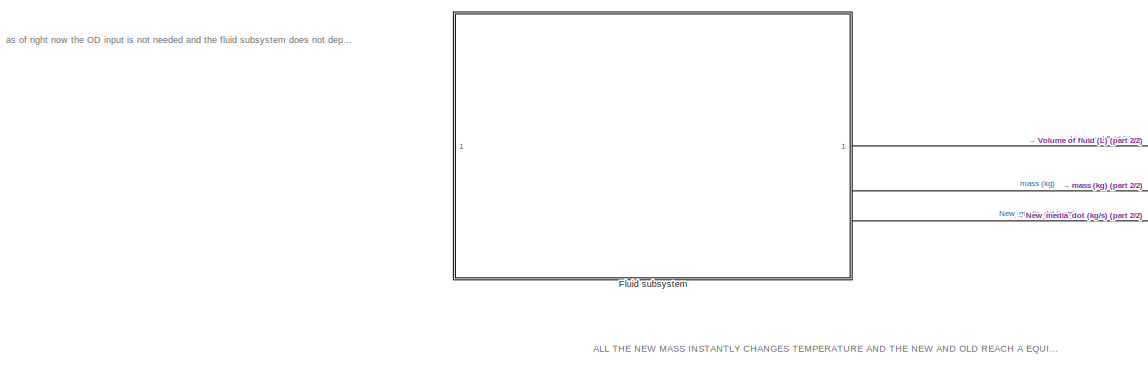
[diagram: root canvas - part 1/2, left side, full height]
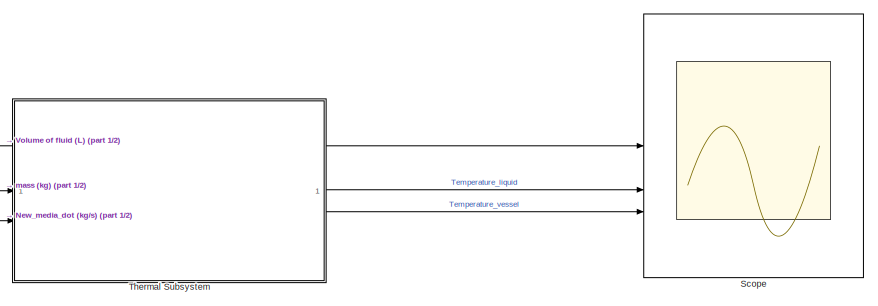
[diagram: root canvas - part 2/2, right side, full height]
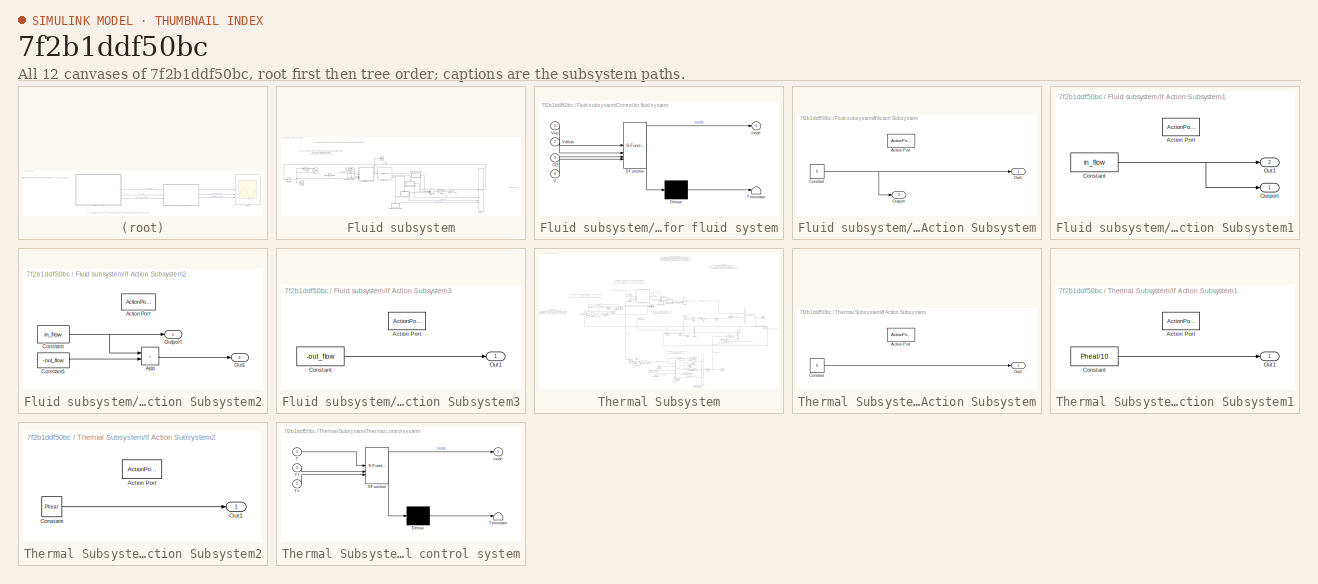
[diagram: thumbnail index - all 12 canvases of the model, root first then tree order]
MODEL slx_7f2b1ddf50bc
KIND model
CONFIG AbsTol = auto
CONFIG EnableMultiTasking = off
CONFIG FixedStep = 0.1
CONFIG MaxStep = auto
CONFIG MinStep = auto
CONFIG RelTol = 1e-3
CONFIG SampleTimeConstraint = Unconstrained
CONFIG SolverName = FixedStepAuto
CONFIG StartTime = 0.0
CONFIG StopTime = 1000
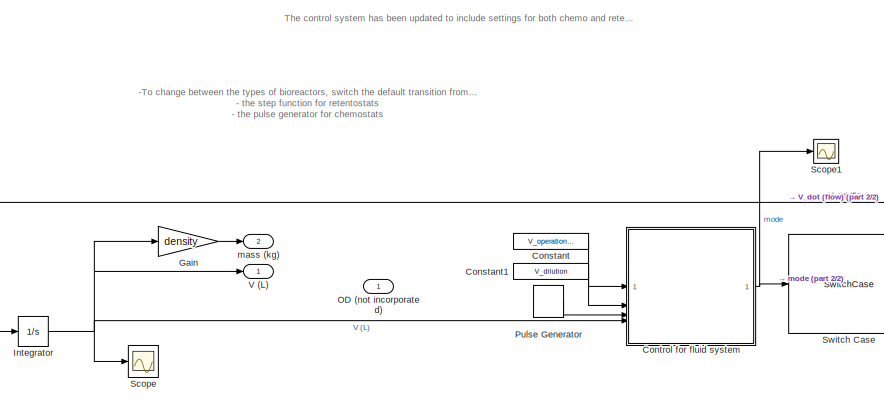
[diagram: Fluid subsystem - part 1/2, middle left region]
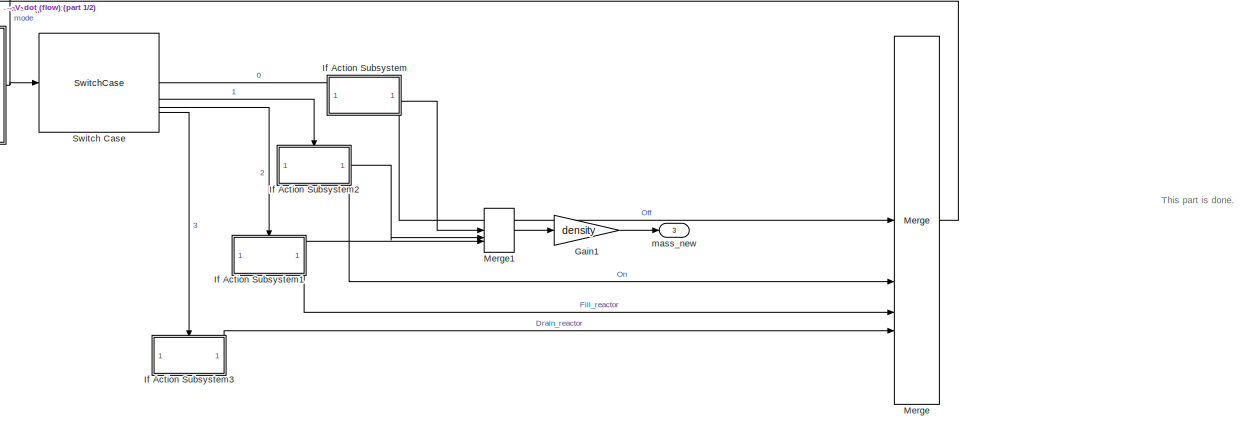
[diagram: Fluid subsystem - part 2/2, middle right region]
BLOCK [SubSystem] Fluid subsystem
BLOCK [Constant] Fluid subsystem/Constant
  Value = V_operational
BLOCK [Constant] Fluid subsystem/Constant1
  Value = V_dilution
BLOCK [SubSystem] Fluid subsystem/Control for fluid system
  ErrorFcn = Stateflow.Translate.translate
  PermitHierarchicalResolution = ExplicitOnly
  SFBlockType = Chart
  TreatAsAtomicUnit = on
BLOCK [Demux] Fluid subsystem/Control for fluid system/ Demux 
  Outputs = 1
BLOCK [S-Function] Fluid subsystem/Control for fluid system/ SFunction 
  EnableBusSupport = on
  FunctionName = sf_sfun
  PortCounts = [4 2]
  SFcnIsStateOwnerBlock = off
  SFunctionDeploymentMode = off
  Tag = Stateflow S-Function 3
BLOCK [Terminator] Fluid subsystem/Control for fluid system/ Terminator 
BLOCK [Inport] Fluid subsystem/Control for fluid system/OD
  Port = 3
BLOCK [Inport] Fluid subsystem/Control for fluid system/V
  Port = 4
BLOCK [Inport] Fluid subsystem/Control for fluid system/Vdilute
  Port = 2
BLOCK [Inport] Fluid subsystem/Control for fluid system/Vop
BLOCK [Outport] Fluid subsystem/Control for fluid system/mode
BLOCK [Gain] Fluid subsystem/Gain
  Gain = density
BLOCK [Gain] Fluid subsystem/Gain1
  Gain = density
BLOCK [SubSystem] Fluid subsystem/If Action Subsystem
  TreatAsAtomicUnit = on
BLOCK [ActionPort] Fluid subsystem/If Action Subsystem/Action Port
  ActionPortLabel = case [ 0 ]:
BLOCK [Constant] Fluid subsystem/If Action Subsystem/Constant
  Value = 0
BLOCK [Outport] Fluid subsystem/If Action Subsystem/Out1
BLOCK [Outport] Fluid subsystem/If Action Subsystem/Outport
  Port = 2
BLOCK [SubSystem] Fluid subsystem/If Action Subsystem1
  TreatAsAtomicUnit = on
BLOCK [ActionPort] Fluid subsystem/If Action Subsystem1/Action Port
  ActionPortLabel = case [ 2 ]:
BLOCK [Constant] Fluid subsystem/If Action Subsystem1/Constant
  Value = in_flow
BLOCK [Outport] Fluid subsystem/If Action Subsystem1/Out1
  Port = 2
BLOCK [Outport] Fluid subsystem/If Action Subsystem1/Outport
BLOCK [SubSystem] Fluid subsystem/If Action Subsystem2
  TreatAsAtomicUnit = on
BLOCK [ActionPort] Fluid subsystem/If Action Subsystem2/Action Port
  ActionPortLabel = case [ 1 ]:
BLOCK [Sum] Fluid subsystem/If Action Subsystem2/Add
  IconShape = rectangular
BLOCK [Constant] Fluid subsystem/If Action Subsystem2/Constant
  Value = in_flow
BLOCK [Constant] Fluid subsystem/If Action Subsystem2/Constant1
  Value = -out_flow
BLOCK [Outport] Fluid subsystem/If Action Subsystem2/Out1
  Port = 2
BLOCK [Outport] Fluid subsystem/If Action Subsystem2/Outport
BLOCK [SubSystem] Fluid subsystem/If Action Subsystem3
  TreatAsAtomicUnit = on
BLOCK [ActionPort] Fluid subsystem/If Action Subsystem3/Action Port
  ActionPortLabel = case [ 3 ]:
BLOCK [Constant] Fluid subsystem/If Action Subsystem3/Constant
  Value = -out_flow
BLOCK [Outport] Fluid subsystem/If Action Subsystem3/Out1
BLOCK [Integrator] Fluid subsystem/Integrator
  InitialCondition = 0.01
BLOCK [Merge] Fluid subsystem/Merge
  Inputs = 4
BLOCK [Merge] Fluid subsystem/Merge1
  Inputs = 3
BLOCK [Inport] Fluid subsystem/OD (not incorporated)
BLOCK [DiscretePulseGenerator] Fluid subsystem/Pulse Generator
  Period = 50
  PulseType = Time based
  PulseWidth = 5
BLOCK [Scope] Fluid subsystem/Scope
  Floating = off
  NumInputPorts = 1
  ScopeSpecificationString = Simulink.scopes.TimeScopeBlockCfg('CurrentConfiguration', extmgr.ConfigurationSet(extmgr.Configuration('Core','General UI',true),extmgr.Configuration('Core','Source UI',true),extmgr.Configuration('Sources','WiredSimulink',true,'DataLoggingVariableName','ScopeData1'),extmgr.Configuration('Visuals','Time Domain',true,'SerializedDisplays',{struct('MinYLimReal','0.00781','MaxYLimReal','0.02969','YLabe...<+1392ch>
BLOCK [Scope] Fluid subsystem/Scope1
  Floating = off
  NumInputPorts = 1
  ScopeSpecificationString = Simulink.scopes.TimeScopeBlockCfg('CurrentConfiguration', extmgr.ConfigurationSet(extmgr.Configuration('Core','General UI',true),extmgr.Configuration('Core','Source UI',true),extmgr.Configuration('Sources','WiredSimulink',true,'DataLoggingVariableName','ScopeData4'),extmgr.Configuration('Visuals','Time Domain',true,'SerializedDisplays',{struct('MinYLimReal','-0.375','MaxYLimReal','3.375','YLabelRe...<+1351ch>
BLOCK [SwitchCase] Fluid subsystem/Switch Case
  CaseConditions = {0,1,2,3}
  ShowDefaultCase = off
BLOCK [Outport] Fluid subsystem/V (L)
BLOCK [Outport] Fluid subsystem/mass (kg)
  Port = 2
BLOCK [Outport] Fluid subsystem/mass_new
  Port = 3
BLOCK [Scope] Scope
  Floating = off
  NumInputPorts = 3
  ScopeSpecificationString = Simulink.scopes.TimeScopeBlockCfg('CurrentConfiguration', extmgr.ConfigurationSet(extmgr.Configuration('Core','General UI',true),extmgr.Configuration('Core','Source UI',true),extmgr.Configuration('Sources','WiredSimulink',true),extmgr.Configuration('Visuals','Time Domain',true,'SerializedDisplays',{struct('MinYLimReal','0.00025','MaxYLimReal','0.05009','YLabelReal','','MinYLimMag','0.00025','MaxYL...<+2086ch>
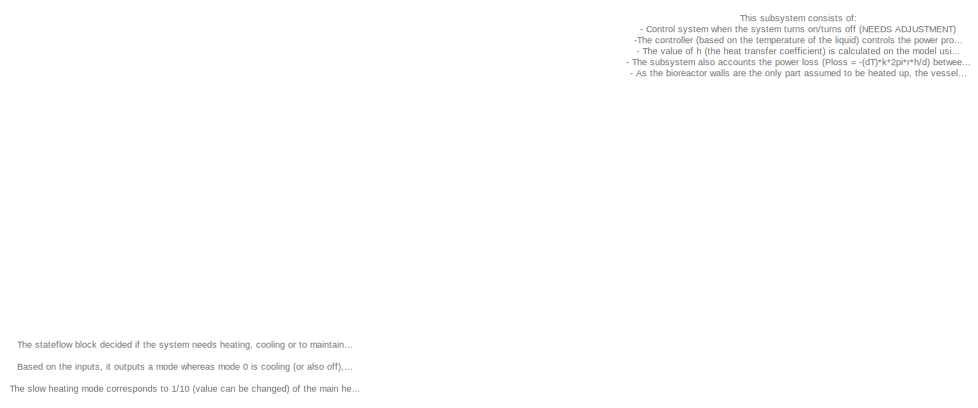
[diagram: Thermal Subsystem - part 1/6, top center region]
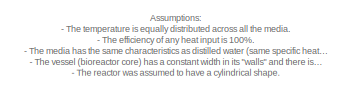
[diagram: Thermal Subsystem - part 2/6, top right region]
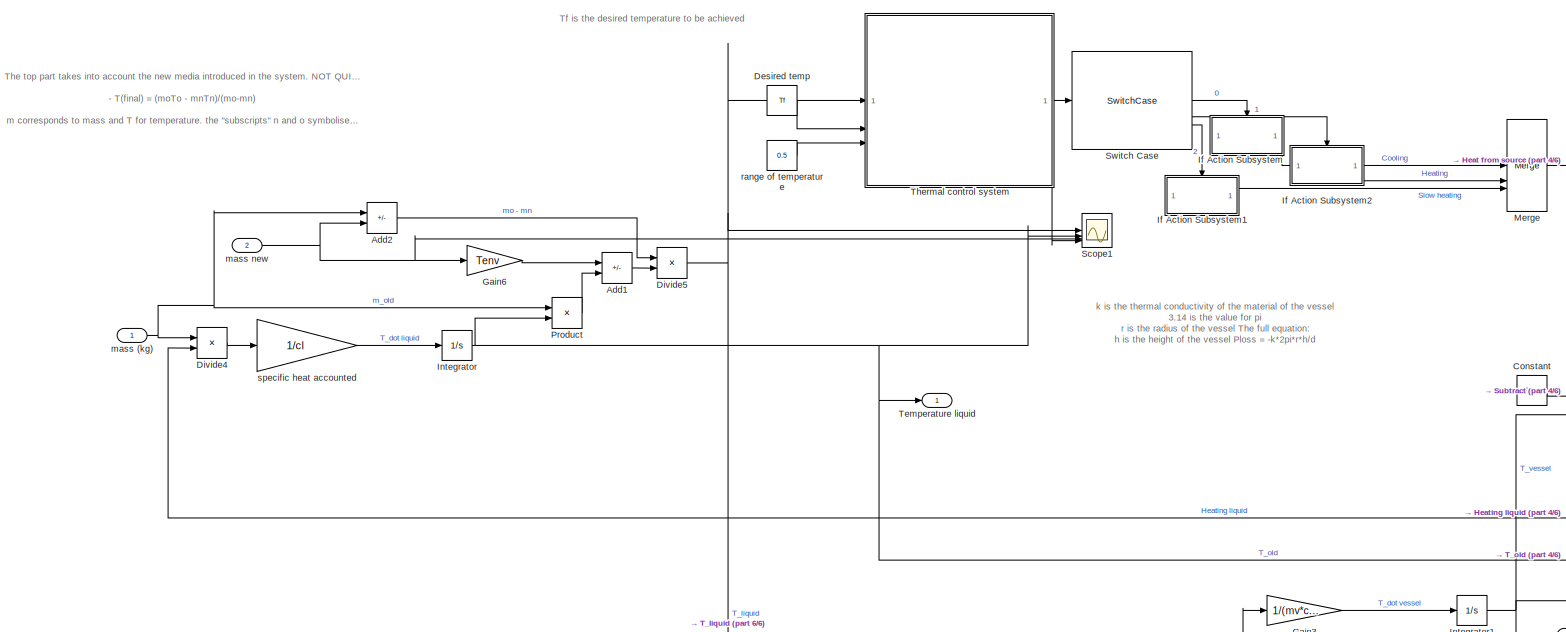
[diagram: Thermal Subsystem - part 3/6, central region]
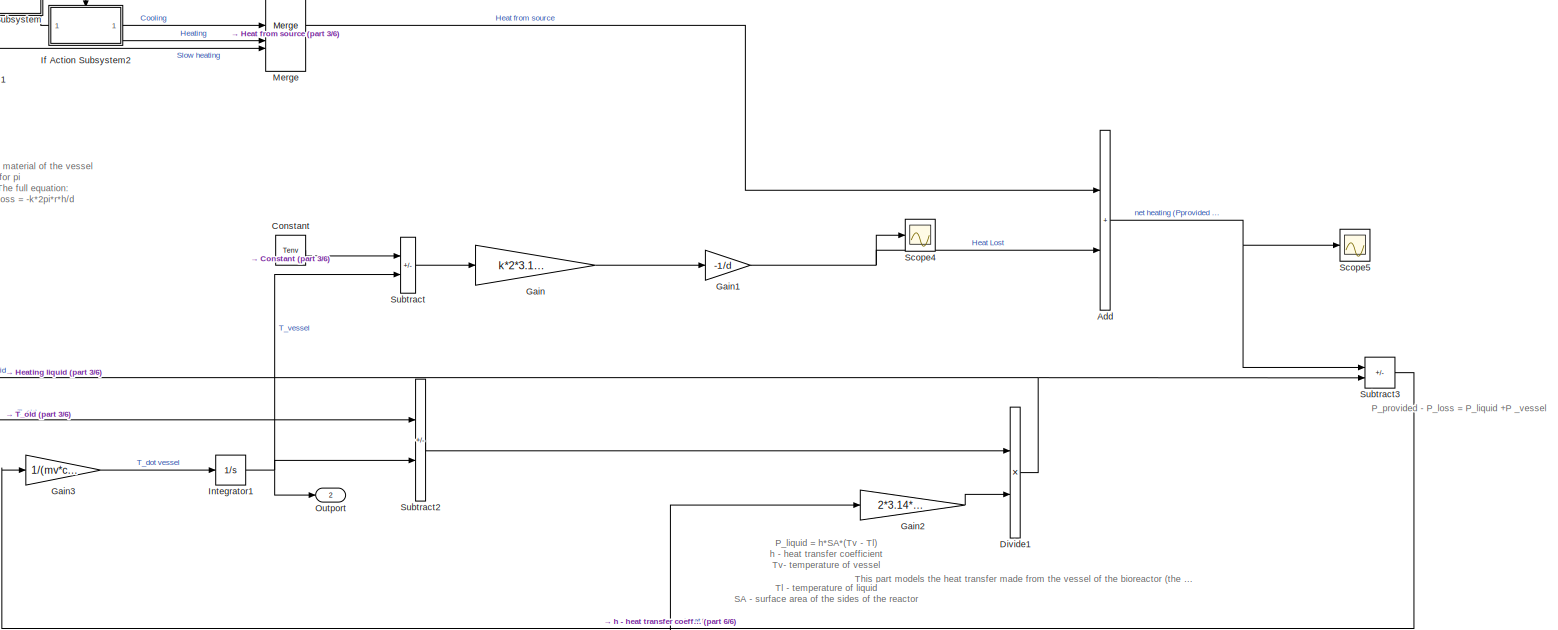
[diagram: Thermal Subsystem - part 4/6, middle right region]
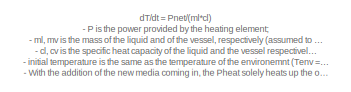
[diagram: Thermal Subsystem - part 5/6, middle left region]
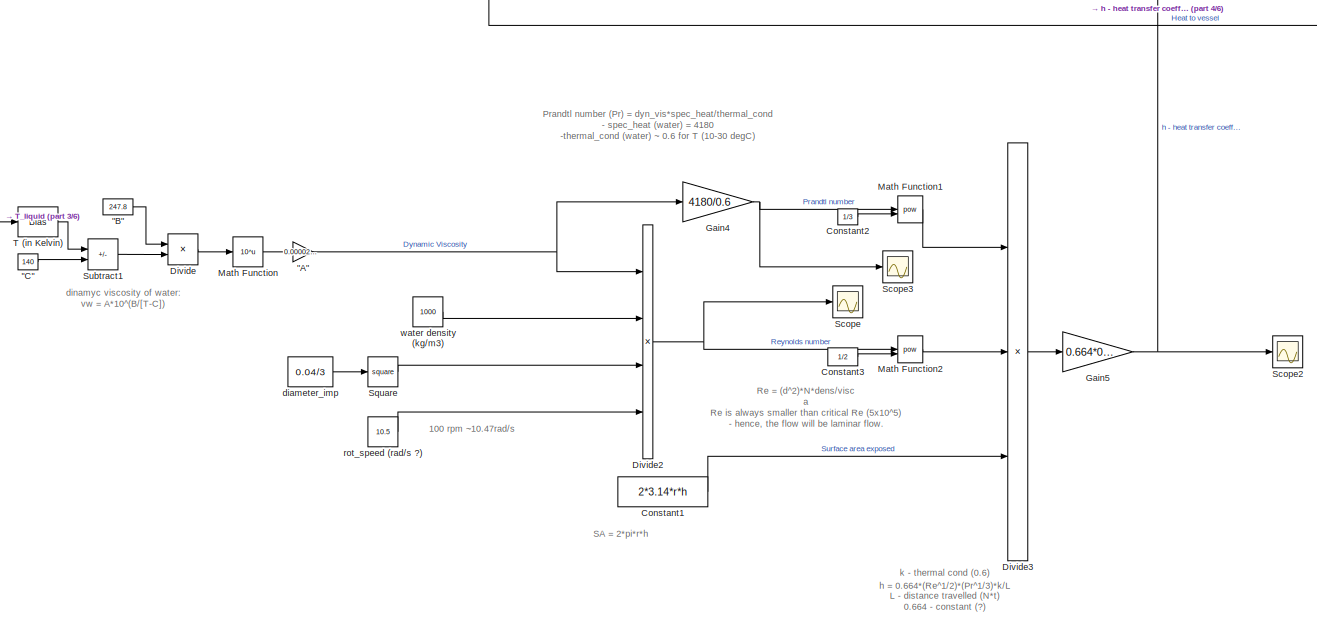
[diagram: Thermal Subsystem - part 6/6, bottom center region]
BLOCK [SubSystem] Thermal Subsystem
BLOCK [Gain] Thermal Subsystem/"A"
  Gain = 0.00002414
BLOCK [Constant] Thermal Subsystem/"B"
  Value = 247.8
BLOCK [Constant] Thermal Subsystem/"C"
  Value = 140
BLOCK [Sum] Thermal Subsystem/Add
  IconShape = rectangular
BLOCK [Sum] Thermal Subsystem/Add1
  IconShape = rectangular
  Inputs = -+
BLOCK [Sum] Thermal Subsystem/Add2
  IconShape = rectangular
  Inputs = +-
BLOCK [Constant] Thermal Subsystem/Constant
  Value = Tenv
BLOCK [Constant] Thermal Subsystem/Constant1
  Value = 2*3.14*r*h
BLOCK [Constant] Thermal Subsystem/Constant2
  Value = 1/3
BLOCK [Constant] Thermal Subsystem/Constant3
  Value = 1/2
BLOCK [Constant] Thermal Subsystem/Desired temp
  Value = Tf
BLOCK [Product] Thermal Subsystem/Divide
  Inputs = */
BLOCK [Product] Thermal Subsystem/Divide1
  Inputs = **
BLOCK [Product] Thermal Subsystem/Divide2
  Inputs = /***
BLOCK [Product] Thermal Subsystem/Divide3
  Inputs = **/
BLOCK [Product] Thermal Subsystem/Divide4
  Inputs = /*
BLOCK [Product] Thermal Subsystem/Divide5
  Inputs = /*
BLOCK [Gain] Thermal Subsystem/Gain
  Gain = k*2*3.14*r*h
BLOCK [Gain] Thermal Subsystem/Gain1
  Gain = -1/d
BLOCK [Gain] Thermal Subsystem/Gain2
  Gain = 2*3.14*r*h
BLOCK [Gain] Thermal Subsystem/Gain3
  Gain = 1/(mv*cv)
BLOCK [Gain] Thermal Subsystem/Gain4
  Gain = 4180/0.6
BLOCK [Gain] Thermal Subsystem/Gain5
  Gain = 0.664*0.6
BLOCK [Gain] Thermal Subsystem/Gain6
  Gain = Tenv
BLOCK [SubSystem] Thermal Subsystem/If Action Subsystem
  TreatAsAtomicUnit = on
BLOCK [ActionPort] Thermal Subsystem/If Action Subsystem/Action Port
  ActionPortLabel = case [ 0 ]:
BLOCK [Constant] Thermal Subsystem/If Action Subsystem/Constant
  Value = 0
BLOCK [Outport] Thermal Subsystem/If Action Subsystem/Out1
BLOCK [SubSystem] Thermal Subsystem/If Action Subsystem1
  TreatAsAtomicUnit = on
BLOCK [ActionPort] Thermal Subsystem/If Action Subsystem1/Action Port
  ActionPortLabel = case [ 2 ]:
BLOCK [Constant] Thermal Subsystem/If Action Subsystem1/Constant
  Value = Pheat/10
BLOCK [Outport] Thermal Subsystem/If Action Subsystem1/Out1
BLOCK [SubSystem] Thermal Subsystem/If Action Subsystem2
  TreatAsAtomicUnit = on
BLOCK [ActionPort] Thermal Subsystem/If Action Subsystem2/Action Port
  ActionPortLabel = case [ 1 ]:
BLOCK [Constant] Thermal Subsystem/If Action Subsystem2/Constant
  Value = Pheat
BLOCK [Outport] Thermal Subsystem/If Action Subsystem2/Out1
BLOCK [Integrator] Thermal Subsystem/Integrator
  InitialCondition = Tenv
BLOCK [Integrator] Thermal Subsystem/Integrator1
  InitialCondition = Tenv
BLOCK [Math] Thermal Subsystem/Math Function
  Operator = 10^u
BLOCK [Math] Thermal Subsystem/Math Function1
  Operator = pow
BLOCK [Math] Thermal Subsystem/Math Function2
  Operator = pow
BLOCK [Merge] Thermal Subsystem/Merge
  Inputs = 3
BLOCK [Outport] Thermal Subsystem/Outport
  Port = 2
BLOCK [Product] Thermal Subsystem/Product
BLOCK [Scope] Thermal Subsystem/Scope
  Floating = off
  NumInputPorts = 1
  ScopeSpecificationString = Simulink.scopes.TimeScopeBlockCfg('CurrentConfiguration', extmgr.ConfigurationSet(extmgr.Configuration('Core','General UI',true),extmgr.Configuration('Core','Source UI',true),extmgr.Configuration('Sources','WiredSimulink',true,'DataLoggingVariableName','ScopeData1'),extmgr.Configuration('Visuals','Time Domain',true,'SerializedDisplays',{struct('MinYLimReal','2061.13273','MaxYLimReal','2341.56775',...<+1425ch>
BLOCK [Scope] Thermal Subsystem/Scope1
  Floating = off
  NumInputPorts = 4
  ScopeSpecificationString = Simulink.scopes.TimeScopeBlockCfg('CurrentConfiguration', extmgr.ConfigurationSet(extmgr.Configuration('Core','General UI',true),extmgr.Configuration('Core','Source UI',true),extmgr.Configuration('Sources','WiredSimulink',true,'DataLoggingVariableName','ScopeData5'),extmgr.Configuration('Visuals','Time Domain',true,'SerializedDisplays',{struct('MinYLimReal','24.77416','MaxYLimReal','40.40631','YLa...<+3441ch>
BLOCK [Scope] Thermal Subsystem/Scope2
  Floating = off
  NumInputPorts = 1
  ScopeSpecificationString = Simulink.scopes.TimeScopeBlockCfg('CurrentConfiguration', extmgr.ConfigurationSet(extmgr.Configuration('Core','General UI',true),extmgr.Configuration('Core','Source UI',true),extmgr.Configuration('Sources','WiredSimulink',true,'DataLoggingVariableName','ScopeData1'),extmgr.Configuration('Visuals','Time Domain',true,'SerializedDisplays',{struct('MinYLimReal','44354.71267','MaxYLimReal','45307.3696'...<+1414ch>
BLOCK [Scope] Thermal Subsystem/Scope3
  Floating = off
  NumInputPorts = 1
  ScopeSpecificationString = Simulink.scopes.TimeScopeBlockCfg('CurrentConfiguration', extmgr.ConfigurationSet(extmgr.Configuration('Core','General UI',true),extmgr.Configuration('Core','Source UI',true),extmgr.Configuration('Sources','WiredSimulink',true,'DataLoggingVariableName','ScopeData2'),extmgr.Configuration('Visuals','Time Domain',true,'SerializedDisplays',{struct('MinYLimReal','5.5456','MaxYLimReal','6.30013','YLabel...<+1397ch>
BLOCK [Scope] Thermal Subsystem/Scope4
  Floating = off
  NumInputPorts = 1
  ScopeSpecificationString = Simulink.scopes.TimeScopeBlockCfg('CurrentConfiguration', extmgr.ConfigurationSet(extmgr.Configuration('Core','General UI',true),extmgr.Configuration('Core','Source UI',true),extmgr.Configuration('Sources','WiredSimulink',true,'DataLoggingVariableName','ScopeData3'),extmgr.Configuration('Visuals','Time Domain',true,'SerializedDisplays',{struct('MinYLimReal','-0.58403','MaxYLimReal','0.06489','YLab...<+1368ch>
BLOCK [Scope] Thermal Subsystem/Scope5
  Floating = off
  NumInputPorts = 1
  ScopeSpecificationString = Simulink.scopes.TimeScopeBlockCfg('CurrentConfiguration', extmgr.ConfigurationSet(extmgr.Configuration('Core','General UI',true),extmgr.Configuration('Core','Source UI',true),extmgr.Configuration('Sources','WiredSimulink',true,'DataLoggingVariableName','ScopeData4'),extmgr.Configuration('Visuals','Time Domain',true,'SerializedDisplays',{struct('MinYLimReal','-0.60903','MaxYLimReal','2.28989','YLab...<+1390ch>
BLOCK [Math] Thermal Subsystem/Square
  Operator = square
BLOCK [Sum] Thermal Subsystem/Subtract
  IconShape = rectangular
  Inputs = -+
BLOCK [Sum] Thermal Subsystem/Subtract1
  IconShape = rectangular
  Inputs = +-
BLOCK [Sum] Thermal Subsystem/Subtract2
  IconShape = rectangular
  Inputs = -+
BLOCK [Sum] Thermal Subsystem/Subtract3
  IconShape = rectangular
  Inputs = +-
BLOCK [SwitchCase] Thermal Subsystem/Switch Case
  CaseConditions = {0,1,2}
  ShowDefaultCase = off
BLOCK [Bias] Thermal Subsystem/T (in Kelvin)
  Bias = 273
  SaturateOnIntegerOverflow = off
BLOCK [Outport] Thermal Subsystem/Temperature liquid
BLOCK [SubSystem] Thermal Subsystem/Thermal control system
  ErrorFcn = Stateflow.Translate.translate
  PermitHierarchicalResolution = ExplicitOnly
  SFBlockType = Chart
  TreatAsAtomicUnit = on
BLOCK [Demux] Thermal Subsystem/Thermal control system/ Demux 
  Outputs = 1
BLOCK [S-Function] Thermal Subsystem/Thermal control system/ SFunction 
  EnableBusSupport = on
  FunctionName = sf_sfun
  PortCounts = [3 2]
  SFcnIsStateOwnerBlock = off
  SFunctionDeploymentMode = off
  Tag = Stateflow S-Function 1
BLOCK [Terminator] Thermal Subsystem/Thermal control system/ Terminator 
BLOCK [Inport] Thermal Subsystem/Thermal control system/T
BLOCK [Inport] Thermal Subsystem/Thermal control system/Te
  Port = 3
BLOCK [Inport] Thermal Subsystem/Thermal control system/Tf
  Port = 2
BLOCK [Outport] Thermal Subsystem/Thermal control system/mode
BLOCK [Constant] Thermal Subsystem/diameter_imp
  Value = 0.04/3
BLOCK [Inport] Thermal Subsystem/mass (kg)
BLOCK [Inport] Thermal Subsystem/mass new
  Port = 2
BLOCK [Constant] Thermal Subsystem/range of temperature
  Value = 0.5
BLOCK [Constant] Thermal Subsystem/rot_speed (rad//s ?)
  Value = 10.5
BLOCK [Gain] Thermal Subsystem/specific heat accounted
  Gain = 1/cl
BLOCK [Constant] Thermal Subsystem/water density (kg//m3) 
  Value = 1000
ANNOTATION (root): ALL THE NEW MASS INSTANTLY CHANGES TEMPERATURE AND THE NEW AND OLD REACH A EQUILIBRIUM!!!
ANNOTATION (root): as of right now the OD input is not needed and the fluid subsystem does not depend in any way of it. This will change in the future
ANNOTATION Fluid subsystem: -To change between the types of bioreactors, switch the default transition from one of the stateflow blocks to the other (described in the control system) and change the source for the OD input in the stateflow input: - the step function for retentostats - the pulse generator for chemostats
ANNOTATION Fluid subsystem: The control system has been updated to include settings for both chemo and retentostats. The heating system for chemostats is not fully functional yet, but it shows promise.
ANNOTATION Fluid subsystem: This part is done.
ANNOTATION Thermal Subsystem: 100 rpm ~10.47rad/s
ANNOTATION Thermal Subsystem: dT/dt = Pnet/(ml*cl) - P is the power provided by the heating element; - ml, mv is the mass of the liquid and of the vessel, respectively (assumed to be 0.25kg and 2kg); - cl, cv is the specific heat capacity of the liquid and the vessel respectively (cl = cwater = 4180 J/kg*K and cv = cglass = 840 J/kg*K); - initial temperature is the same as the temperature of the environemnt (Tenv = 25 degC) - ...<+403ch>
ANNOTATION Thermal Subsystem: Prandtl number (Pr) = dyn_vis*spec_heat/thermal_cond - spec_heat (water) = 4180 -thermal_cond (water) ~ 0.6 for T (10-30 degC)
ANNOTATION Thermal Subsystem: Re = (d^2)*N*dens/visc a Re is always smaller than critical Re (5x10^5) - hence, the flow will be laminar flow.
ANNOTATION Thermal Subsystem: k is the thermal conductivity of the material of the vessel 3.14 is the value for pi r is the radius of the vessel The full equation: h is the height of the vessel Ploss = -k*2pi*r*h/d
ANNOTATION Thermal Subsystem: P_liquid = h*SA*(Tv - Tl) h - heat transfer coefficient Tv- temperature of vessel Tl - temperature of liquid SA - surface area of the sides of the reactor
ANNOTATION Thermal Subsystem: SA = 2*pi*r*h
ANNOTATION Thermal Subsystem: This subsystem consists of: - Control system when the system turns on/turns off (NEEDS ADJUSTMENT) -The controller (based on the temperature of the liquid) controls the power provided to the vessel (P_provided). The vessel is assumed to be the only part heated up. - The value of h (the heat transfer coefficient) is calculated on the model using a series of inputs that will be controlled later on d...<+852ch>
ANNOTATION Thermal Subsystem: P_provided - P_loss = P_liquid +P _vessel
ANNOTATION Thermal Subsystem: This part models the heat transfer made from the vessel of the bioreactor (the part that is heated) to the liquid in itself.
ANNOTATION Thermal Subsystem: h = 0.664*(Re^1/2)*(Pr^1/3)*k/L k - thermal cond (0.6) L - distance travelled (N*t) 0.664 - constant (?)
ANNOTATION Thermal Subsystem: dinamyc viscosity of water: vw = A*10^(B/[T-C])
ANNOTATION Thermal Subsystem: Assumptions: - The temperature is equally distributed across all the media. - The efficiency of any heat input is 100%. - The media has the same characteristics as distilled water (same specific heat capacity and density for example). - The vessel (bioreactor core) has a constant width in its "walls" and there is no heat transfer in the top and bottom of the bioreactor. - The reactor was assumed t...<+528ch>
ANNOTATION Thermal Subsystem: Tf is the desired temperature to be achieved
ANNOTATION Thermal Subsystem: The stateflow block decided if the system needs heating, cooling or to maintain the temperature based on the temperature (T), the desired temperature (Tf) and a range where the temperature can be maintained (+/- Terror). Based on the inputs, it outputs a mode whereas mode 0 is cooling (or also off), mode 1 is heating and mode 2 is maintaining the temperature. The slow heating mode corresponds to 1...<+52ch>
ANNOTATION Thermal Subsystem: The top part takes into account the new media introduced in the system. NOT QUITE READY YET - T(final) = (moTo - mnTn)/(mo-mn) m corresponds to mass and T for temperature. the "subscripts" n and o symbolise the new/old liquid of the system. New is represented as
LINE Fluid subsystem/Constant1:1 -> Fluid subsystem/Control for fluid system:2
LINE Fluid subsystem/Constant:1 -> Fluid subsystem/Control for fluid system:1
NET Fluid subsystem/Control for fluid system:1 -> Fluid subsystem/Scope1:1, Fluid subsystem/Switch Case:1
LINE Fluid subsystem/Gain1:1 -> Fluid subsystem/mass_new:1
LINE Fluid subsystem/Gain:1 -> Fluid subsystem/mass (kg):1
NET Fluid subsystem/If Action Subsystem/Constant:1 -> Fluid subsystem/If Action Subsystem/Out1:1, Fluid subsystem/If Action Subsystem/Outport:1
NET Fluid subsystem/If Action Subsystem1/Constant:1 -> Fluid subsystem/If Action Subsystem1/Out1:1, Fluid subsystem/If Action Subsystem1/Outport:1
LINE Fluid subsystem/If Action Subsystem1:1 -> Fluid subsystem/Merge1:3
LINE Fluid subsystem/If Action Subsystem1:2 -> Fluid subsystem/Merge:3
LINE Fluid subsystem/If Action Subsystem2/Add:1 -> Fluid subsystem/If Action Subsystem2/Out1:1
LINE Fluid subsystem/If Action Subsystem2/Constant1:1 -> Fluid subsystem/If Action Subsystem2/Add:2
NET Fluid subsystem/If Action Subsystem2/Constant:1 -> Fluid subsystem/If Action Subsystem2/Add:1, Fluid subsystem/If Action Subsystem2/Outport:1
LINE Fluid subsystem/If Action Subsystem2:1 -> Fluid subsystem/Merge1:2
LINE Fluid subsystem/If Action Subsystem2:2 -> Fluid subsystem/Merge:2
LINE Fluid subsystem/If Action Subsystem3/Constant:1 -> Fluid subsystem/If Action Subsystem3/Out1:1
LINE Fluid subsystem/If Action Subsystem3:1 -> Fluid subsystem/Merge:4
LINE Fluid subsystem/If Action Subsystem:1 -> Fluid subsystem/Merge:1
LINE Fluid subsystem/If Action Subsystem:2 -> Fluid subsystem/Merge1:1
NET Fluid subsystem/Integrator:1 -> Fluid subsystem/Control for fluid system:4, Fluid subsystem/Gain:1, Fluid subsystem/Scope:1, Fluid subsystem/V (L):1
LINE Fluid subsystem/Merge1:1 -> Fluid subsystem/Gain1:1
LINE Fluid subsystem/Merge:1 -> Fluid subsystem/Integrator:1
LINE Fluid subsystem/Pulse Generator:1 -> Fluid subsystem/Control for fluid system:3
LINE Fluid subsystem/Switch Case:1 -> Fluid subsystem/If Action Subsystem:ifaction
LINE Fluid subsystem/Switch Case:2 -> Fluid subsystem/If Action Subsystem2:ifaction
LINE Fluid subsystem/Switch Case:3 -> Fluid subsystem/If Action Subsystem1:ifaction
LINE Fluid subsystem/Switch Case:4 -> Fluid subsystem/If Action Subsystem3:ifaction
LINE Fluid subsystem:1 -> Scope:1
LINE Fluid subsystem:2 -> Thermal Subsystem:1
LINE Fluid subsystem:3 -> Thermal Subsystem:2
NET Thermal Subsystem/"A":1 -> Thermal Subsystem/Divide2:1, Thermal Subsystem/Gain4:1
LINE Thermal Subsystem/"B":1 -> Thermal Subsystem/Divide:1
LINE Thermal Subsystem/"C":1 -> Thermal Subsystem/Subtract1:2
LINE Thermal Subsystem/Add1:1 -> Thermal Subsystem/Divide5:2
LINE Thermal Subsystem/Add2:1 -> Thermal Subsystem/Divide5:1
NET Thermal Subsystem/Add:1 -> Thermal Subsystem/Scope5:1, Thermal Subsystem/Subtract3:1
LINE Thermal Subsystem/Constant1:1 -> Thermal Subsystem/Divide3:3
LINE Thermal Subsystem/Constant2:1 -> Thermal Subsystem/Math Function1:2
LINE Thermal Subsystem/Constant3:1 -> Thermal Subsystem/Math Function2:2
LINE Thermal Subsystem/Constant:1 -> Thermal Subsystem/Subtract:1
LINE Thermal Subsystem/Desired temp:1 -> Thermal Subsystem/Thermal control system:2
NET Thermal Subsystem/Divide1:1 -> Thermal Subsystem/Divide4:2, Thermal Subsystem/Subtract3:2
NET Thermal Subsystem/Divide2:1 -> Thermal Subsystem/Math Function2:1, Thermal Subsystem/Scope:1
LINE Thermal Subsystem/Divide3:1 -> Thermal Subsystem/Gain5:1
LINE Thermal Subsystem/Divide4:1 -> Thermal Subsystem/specific heat accounted:1
NET Thermal Subsystem/Divide5:1 -> Thermal Subsystem/Scope1:1, Thermal Subsystem/T (in Kelvin):1, Thermal Subsystem/Thermal control system:1
LINE Thermal Subsystem/Divide:1 -> Thermal Subsystem/Math Function:1
NET Thermal Subsystem/Gain1:1 -> Thermal Subsystem/Add:2, Thermal Subsystem/Scope4:1
LINE Thermal Subsystem/Gain2:1 -> Thermal Subsystem/Divide1:2
LINE Thermal Subsystem/Gain3:1 -> Thermal Subsystem/Integrator1:1
NET Thermal Subsystem/Gain4:1 -> Thermal Subsystem/Math Function1:1, Thermal Subsystem/Scope3:1
NET Thermal Subsystem/Gain5:1 -> Thermal Subsystem/Gain2:1, Thermal Subsystem/Scope2:1
LINE Thermal Subsystem/Gain6:1 -> Thermal Subsystem/Add1:1
LINE Thermal Subsystem/Gain:1 -> Thermal Subsystem/Gain1:1
LINE Thermal Subsystem/If Action Subsystem/Constant:1 -> Thermal Subsystem/If Action Subsystem/Out1:1
LINE Thermal Subsystem/If Action Subsystem1/Constant:1 -> Thermal Subsystem/If Action Subsystem1/Out1:1
LINE Thermal Subsystem/If Action Subsystem1:1 -> Thermal Subsystem/Merge:3
LINE Thermal Subsystem/If Action Subsystem2/Constant:1 -> Thermal Subsystem/If Action Subsystem2/Out1:1
LINE Thermal Subsystem/If Action Subsystem2:1 -> Thermal Subsystem/Merge:2
LINE Thermal Subsystem/If Action Subsystem:1 -> Thermal Subsystem/Merge:1
NET Thermal Subsystem/Integrator1:1 -> Thermal Subsystem/Outport:1, Thermal Subsystem/Subtract2:2, Thermal Subsystem/Subtract:2
NET Thermal Subsystem/Integrator:1 -> Thermal Subsystem/Product:2, Thermal Subsystem/Scope1:2, Thermal Subsystem/Subtract2:1, Thermal Subsystem/Temperature liquid:1
LINE Thermal Subsystem/Math Function1:1 -> Thermal Subsystem/Divide3:1
LINE Thermal Subsystem/Math Function2:1 -> Thermal Subsystem/Divide3:2
LINE Thermal Subsystem/Math Function:1 -> Thermal Subsystem/"A":1
LINE Thermal Subsystem/Merge:1 -> Thermal Subsystem/Add:1
LINE Thermal Subsystem/Product:1 -> Thermal Subsystem/Add1:2
LINE Thermal Subsystem/Square:1 -> Thermal Subsystem/Divide2:3
LINE Thermal Subsystem/Subtract1:1 -> Thermal Subsystem/Divide:2
LINE Thermal Subsystem/Subtract2:1 -> Thermal Subsystem/Divide1:1
LINE Thermal Subsystem/Subtract3:1 -> Thermal Subsystem/Gain3:1
LINE Thermal Subsystem/Subtract:1 -> Thermal Subsystem/Gain:1
LINE Thermal Subsystem/Switch Case:1 -> Thermal Subsystem/If Action Subsystem:ifaction
LINE Thermal Subsystem/Switch Case:2 -> Thermal Subsystem/If Action Subsystem2:ifaction
LINE Thermal Subsystem/Switch Case:3 -> Thermal Subsystem/If Action Subsystem1:ifaction
LINE Thermal Subsystem/T (in Kelvin):1 -> Thermal Subsystem/Subtract1:1
NET Thermal Subsystem/Thermal control system:1 -> Thermal Subsystem/Scope1:4, Thermal Subsystem/Switch Case:1
LINE Thermal Subsystem/diameter_imp:1 -> Thermal Subsystem/Square:1
NET Thermal Subsystem/mass (kg):1 -> Thermal Subsystem/Add2:1, Thermal Subsystem/Divide4:1, Thermal Subsystem/Product:1
NET Thermal Subsystem/mass new:1 -> Thermal Subsystem/Add2:2, Thermal Subsystem/Gain6:1, Thermal Subsystem/Scope1:3
LINE Thermal Subsystem/range of temperature:1 -> Thermal Subsystem/Thermal control system:3
LINE Thermal Subsystem/rot_speed (rad//s ?):1 -> Thermal Subsystem/Divide2:4
LINE Thermal Subsystem/specific heat accounted:1 -> Thermal Subsystem/Integrator:1
LINE Thermal Subsystem/water density (kg//m3) :1 -> Thermal Subsystem/Divide2:2
LINE Thermal Subsystem:1 -> Scope:2
LINE Thermal Subsystem:2 -> Scope:3
note: NET lines group one-source signal fan-out (src -> all destinations, sorted); 1:1 wires keep LINE
CHART Thermal Subsystem/Thermal control system states=4 transitions=7
  STATE_LABEL 'Heating\nentry:\nmode = 1;'
  STATE_LABEL 'Cooling\nentry:\nmode = 0;\n'
  STATE_LABEL 'Slow_Heating\nentry:\nmode = 2;'
  STATE_LABEL 'This part of the transition between cooling and slow heating can be observed to be changed  (to save power, the slow heating part can be disabled after it reaches a certain temperature)'
CHART Fluid subsystem/Control for fluid system states=3 transitions=4
  STATE_LABEL 'Off_in\nen:\nmode = 0;'
  STATE_LABEL 'Pump_in\nen:\nmode = 2;'
  STATE_LABEL 'Pump_out\nen:\nmode = 3;'
CHART  states=0 transitions=0
CHART  states=0 transitions=0
